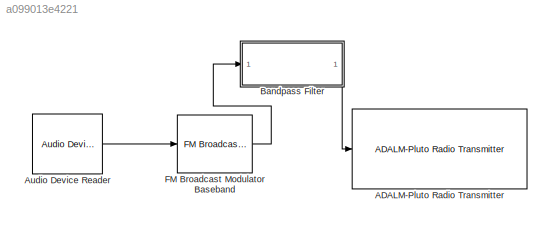
MODEL slx_a099013e4221
KIND model
CONFIG AbsTol = auto
CONFIG EnableMultiTasking = off
CONFIG FixedStep = auto
CONFIG MaxStep = auto
CONFIG MinStep = auto
CONFIG RelTol = 1e-3
CONFIG SampleTimeConstraint = Unconstrained
CONFIG SolverName = VariableStepAuto
CONFIG StartTime = 0.0
CONFIG StopTime = 1000
BLOCK [Reference] ADALM-Pluto Radio Transmitter  REF=plutoradiolib/ADALM-Pluto Radio
Transmitter
  SourceBlock = plutoradiolib/ADALM-Pluto Radio\nTransmitter
  SourceType = comm.SDRTxPluto
BLOCK [Reference] Audio Device Reader  REF=audiosources/Audio Device
Reader
  SourceBlock = audiosources/Audio Device\nReader
  SourceType = Audio Device Reader
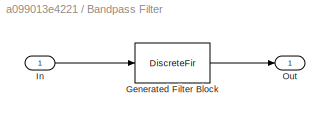
BLOCK [SubSystem] Bandpass Filter
  CopyFcn = fdesignblkfcn(gcbh, {'CopyFcn'});
  DialogController = fdesignblkfcn
  InitFcn = fdesignblkfcn(gcbh, {'InitFcn'});
  UserDataPersistent = on
BLOCK [DiscreteFir] Bandpass Filter/Generated Filter Block
  Coefficients = [-0.0008992291487744296 0.0016414518747943749 0.0031352071842225397 -0.0040707550828814922 -0.0063731852227904111 0.0074874286806090491 0.0098354319566295711 -0.010189316513446216 -0.011302794465874122 0.0096929185841818435 0.0079428653987464216 -0.0031368247881221642 0.0028299878877943137 -0.011508674243001471 -0.022080136219461581 0.034245325424507672 0.048356661648905473 -0.062355369169884239 -...<+647ch>
  InputPortMap = u0
  InputProcessing = Columns as channels (frame based)
  OutputPortMap = o0
  Tag = BlockMethodSubSystem
BLOCK [Inport] Bandpass Filter/In
BLOCK [Outport] Bandpass Filter/Out
  VectorParamsAs1DForOutWhenUnconnected = off
BLOCK [Reference] FM Broadcast Modulator Baseband  REF=commanabbnd3/FM Broadcast
Modulator
Baseband
  SourceBlock = commanabbnd3/FM Broadcast\nModulator\nBaseband
  SourceType = FM Broadcast Modulator Baseband
LINE Audio Device Reader:1 -> FM Broadcast Modulator Baseband:1
LINE Bandpass Filter:1 -> ADALM-Pluto Radio Transmitter:1
LINE FM Broadcast Modulator Baseband:1 -> Bandpass Filter:1
